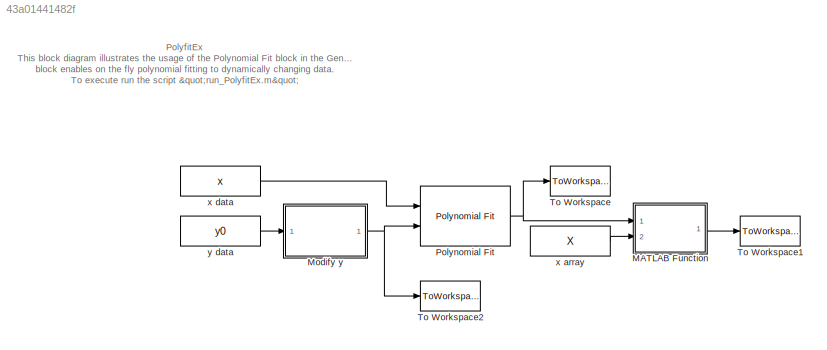
MODEL slx_43a01441482f
KIND model
CONFIG AbsTol = auto
CONFIG FixedStep = 0.2
CONFIG MaxStep = auto
CONFIG MinStep = auto
CONFIG RelTol = 1e-3
CONFIG SampleTimeConstraint = Unconstrained
CONFIG Solver = FixedStepDiscrete
CONFIG SolverMode = Auto
CONFIG SolverName = FixedStepDiscrete
CONFIG StartTime = 0.0
CONFIG StopTime = 50
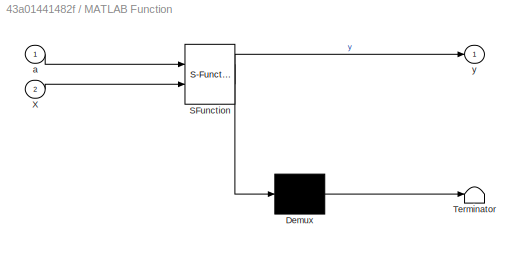
BLOCK [SubSystem] MATLAB Function
  ErrorFcn = Stateflow.Translate.translate
  PermitHierarchicalResolution = ExplicitOnly
  Ports = [2, 1]
  RequestExecContextInheritance = off
  SFBlockType = MATLAB Function
  TreatAsAtomicUnit = on
BLOCK [Demux] MATLAB Function/ Demux 
  Outputs = 1
  Ports = [1, 1]
BLOCK [S-Function] MATLAB Function/ SFunction 
  EnableBusSupport = on
  FunctionName = sf_sfun
  PortCounts = [2 2]
  Ports = [2, 2]
  Tag = Stateflow S-Function PolyfitEx 2
BLOCK [Terminator] MATLAB Function/ Terminator 
BLOCK [Inport] MATLAB Function/X
  IconDisplay = Port number
  Port = 2
BLOCK [Inport] MATLAB Function/a
  IconDisplay = Port number
BLOCK [Outport] MATLAB Function/y
  IconDisplay = Port number
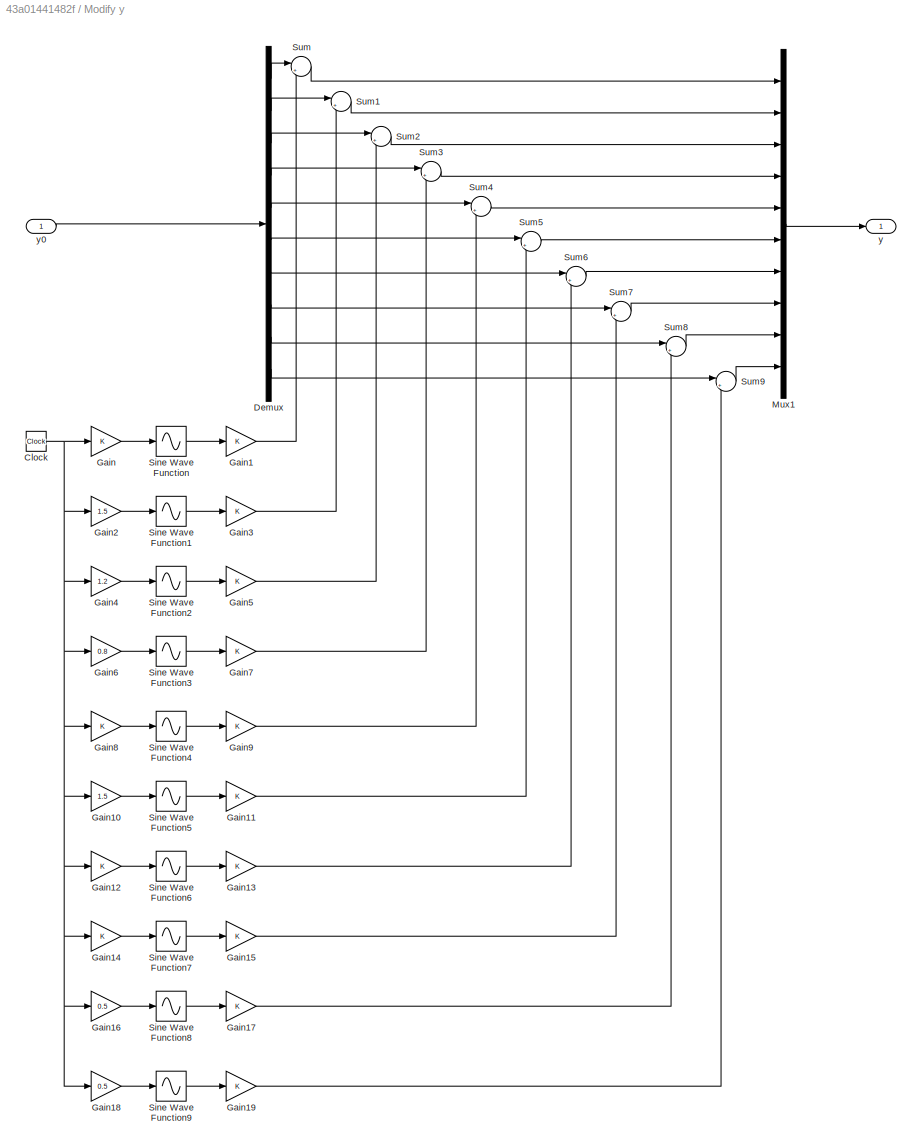
BLOCK [SubSystem] Modify y
  Ports = [1, 1]
  RequestExecContextInheritance = off
BLOCK [Clock] Modify y/Clock
BLOCK [Demux] Modify y/Demux
  DisplayOption = bar
  Outputs = 10
  Ports = [1, 10]
BLOCK [Gain] Modify y/Gain
  OutDataTypeStr = Inherit: Inherit via internal rule
  ParamDataTypeStr = Inherit: Inherit via internal rule
  SaturateOnIntegerOverflow = off
BLOCK [Gain] Modify y/Gain1
  OutDataTypeStr = Inherit: Inherit via internal rule
  ParamDataTypeStr = Inherit: Inherit via internal rule
  SaturateOnIntegerOverflow = off
BLOCK [Gain] Modify y/Gain10
  Gain = 1.5
  OutDataTypeStr = Inherit: Inherit via internal rule
  ParamDataTypeStr = Inherit: Inherit via internal rule
  SaturateOnIntegerOverflow = off
BLOCK [Gain] Modify y/Gain11
  OutDataTypeStr = Inherit: Inherit via internal rule
  ParamDataTypeStr = Inherit: Inherit via internal rule
  SaturateOnIntegerOverflow = off
BLOCK [Gain] Modify y/Gain12
  OutDataTypeStr = Inherit: Inherit via internal rule
  ParamDataTypeStr = Inherit: Inherit via internal rule
  SaturateOnIntegerOverflow = off
BLOCK [Gain] Modify y/Gain13
  OutDataTypeStr = Inherit: Inherit via internal rule
  ParamDataTypeStr = Inherit: Inherit via internal rule
  SaturateOnIntegerOverflow = off
BLOCK [Gain] Modify y/Gain14
  OutDataTypeStr = Inherit: Inherit via internal rule
  ParamDataTypeStr = Inherit: Inherit via internal rule
  SaturateOnIntegerOverflow = off
BLOCK [Gain] Modify y/Gain15
  OutDataTypeStr = Inherit: Inherit via internal rule
  ParamDataTypeStr = Inherit: Inherit via internal rule
  SaturateOnIntegerOverflow = off
BLOCK [Gain] Modify y/Gain16
  Gain = 0.5
  OutDataTypeStr = Inherit: Inherit via internal rule
  ParamDataTypeStr = Inherit: Inherit via internal rule
  SaturateOnIntegerOverflow = off
BLOCK [Gain] Modify y/Gain17
  OutDataTypeStr = Inherit: Inherit via internal rule
  ParamDataTypeStr = Inherit: Inherit via internal rule
  SaturateOnIntegerOverflow = off
BLOCK [Gain] Modify y/Gain18
  Gain = 0.5
  OutDataTypeStr = Inherit: Inherit via internal rule
  ParamDataTypeStr = Inherit: Inherit via internal rule
  SaturateOnIntegerOverflow = off
BLOCK [Gain] Modify y/Gain19
  OutDataTypeStr = Inherit: Inherit via internal rule
  ParamDataTypeStr = Inherit: Inherit via internal rule
  SaturateOnIntegerOverflow = off
BLOCK [Gain] Modify y/Gain2
  Gain = 1.5
  OutDataTypeStr = Inherit: Inherit via internal rule
  ParamDataTypeStr = Inherit: Inherit via internal rule
  SaturateOnIntegerOverflow = off
BLOCK [Gain] Modify y/Gain3
  OutDataTypeStr = Inherit: Inherit via internal rule
  ParamDataTypeStr = Inherit: Inherit via internal rule
  SaturateOnIntegerOverflow = off
BLOCK [Gain] Modify y/Gain4
  Gain = 1.2
  OutDataTypeStr = Inherit: Inherit via internal rule
  ParamDataTypeStr = Inherit: Inherit via internal rule
  SaturateOnIntegerOverflow = off
BLOCK [Gain] Modify y/Gain5
  OutDataTypeStr = Inherit: Inherit via internal rule
  ParamDataTypeStr = Inherit: Inherit via internal rule
  SaturateOnIntegerOverflow = off
BLOCK [Gain] Modify y/Gain6
  Gain = 0.8
  OutDataTypeStr = Inherit: Inherit via internal rule
  ParamDataTypeStr = Inherit: Inherit via internal rule
  SaturateOnIntegerOverflow = off
BLOCK [Gain] Modify y/Gain7
  OutDataTypeStr = Inherit: Inherit via internal rule
  ParamDataTypeStr = Inherit: Inherit via internal rule
  SaturateOnIntegerOverflow = off
BLOCK [Gain] Modify y/Gain8
  OutDataTypeStr = Inherit: Inherit via internal rule
  ParamDataTypeStr = Inherit: Inherit via internal rule
  SaturateOnIntegerOverflow = off
BLOCK [Gain] Modify y/Gain9
  OutDataTypeStr = Inherit: Inherit via internal rule
  ParamDataTypeStr = Inherit: Inherit via internal rule
  SaturateOnIntegerOverflow = off
BLOCK [Mux] Modify y/Mux1
  DisplayOption = bar
  Inputs = 10
  Ports = [10, 1]
BLOCK [Sin] Modify y/Sine Wave Function
  Ports = [1, 1]
  SampleTime = 0
  TimeSource = Use external signal
BLOCK [Sin] Modify y/Sine Wave Function1
  Ports = [1, 1]
  SampleTime = 0
  TimeSource = Use external signal
BLOCK [Sin] Modify y/Sine Wave Function2
  Ports = [1, 1]
  SampleTime = 0
  TimeSource = Use external signal
BLOCK [Sin] Modify y/Sine Wave Function3
  Ports = [1, 1]
  SampleTime = 0
  TimeSource = Use external signal
BLOCK [Sin] Modify y/Sine Wave Function4
  Ports = [1, 1]
  SampleTime = 0
  TimeSource = Use external signal
BLOCK [Sin] Modify y/Sine Wave Function5
  Ports = [1, 1]
  SampleTime = 0
  TimeSource = Use external signal
BLOCK [Sin] Modify y/Sine Wave Function6
  Ports = [1, 1]
  SampleTime = 0
  TimeSource = Use external signal
BLOCK [Sin] Modify y/Sine Wave Function7
  Ports = [1, 1]
  SampleTime = 0
  TimeSource = Use external signal
BLOCK [Sin] Modify y/Sine Wave Function8
  Ports = [1, 1]
  SampleTime = 0
  TimeSource = Use external signal
BLOCK [Sin] Modify y/Sine Wave Function9
  Ports = [1, 1]
  SampleTime = 0
  TimeSource = Use external signal
BLOCK [Sum] Modify y/Sum
  IconShape = round
  InputSameDT = off
  Inputs = |++
  OutDataTypeStr = Inherit: Inherit via internal rule
  Ports = [2, 1]
  SaturateOnIntegerOverflow = off
BLOCK [Sum] Modify y/Sum1
  IconShape = round
  InputSameDT = off
  Inputs = |++
  OutDataTypeStr = Inherit: Inherit via internal rule
  Ports = [2, 1]
  SaturateOnIntegerOverflow = off
BLOCK [Sum] Modify y/Sum2
  IconShape = round
  InputSameDT = off
  Inputs = |++
  OutDataTypeStr = Inherit: Inherit via internal rule
  Ports = [2, 1]
  SaturateOnIntegerOverflow = off
BLOCK [Sum] Modify y/Sum3
  IconShape = round
  InputSameDT = off
  Inputs = |++
  OutDataTypeStr = Inherit: Inherit via internal rule
  Ports = [2, 1]
  SaturateOnIntegerOverflow = off
BLOCK [Sum] Modify y/Sum4
  IconShape = round
  InputSameDT = off
  Inputs = |++
  OutDataTypeStr = Inherit: Inherit via internal rule
  Ports = [2, 1]
  SaturateOnIntegerOverflow = off
BLOCK [Sum] Modify y/Sum5
  IconShape = round
  InputSameDT = off
  Inputs = |++
  OutDataTypeStr = Inherit: Inherit via internal rule
  Ports = [2, 1]
  SaturateOnIntegerOverflow = off
BLOCK [Sum] Modify y/Sum6
  IconShape = round
  InputSameDT = off
  Inputs = |++
  OutDataTypeStr = Inherit: Inherit via internal rule
  Ports = [2, 1]
  SaturateOnIntegerOverflow = off
BLOCK [Sum] Modify y/Sum7
  IconShape = round
  InputSameDT = off
  Inputs = |++
  OutDataTypeStr = Inherit: Inherit via internal rule
  Ports = [2, 1]
  SaturateOnIntegerOverflow = off
BLOCK [Sum] Modify y/Sum8
  IconShape = round
  InputSameDT = off
  Inputs = |++
  OutDataTypeStr = Inherit: Inherit via internal rule
  Ports = [2, 1]
  SaturateOnIntegerOverflow = off
BLOCK [Sum] Modify y/Sum9
  IconShape = round
  InputSameDT = off
  Inputs = |++
  OutDataTypeStr = Inherit: Inherit via internal rule
  Ports = [2, 1]
  SaturateOnIntegerOverflow = off
BLOCK [Outport] Modify y/y
  IconDisplay = Port number
BLOCK [Inport] Modify y/y0
  IconDisplay = Port number
BLOCK [Reference] Polynomial Fit  REF=lib_GenTools_PolynomialFit/Polynomial Fit
  BN_M = double(gcb)
  N_M = 6
  Ports = [2, 1]
  SourceBlock = lib_GenTools_PolynomialFit/Polynomial Fit
  SourceType = TSAT: Polynomial Fit
BLOCK [ToWorkspace] To Workspace
  FixptAsFi = on
  MaxDataPoints = inf
  Ports = [1]
  SampleTime = -1
  Save2DSignal = 3-D array (concatenate along third dimension)
  SaveFormat = Timeseries
  VariableName = a
BLOCK [ToWorkspace] To Workspace1
  FixptAsFi = on
  MaxDataPoints = inf
  Ports = [1]
  SampleTime = -1
  Save2DSignal = 3-D array (concatenate along third dimension)
  SaveFormat = Timeseries
  VariableName = y
BLOCK [ToWorkspace] To Workspace2
  FixptAsFi = on
  MaxDataPoints = inf
  Ports = [1]
  SampleTime = -1
  Save2DSignal = 3-D array (concatenate along third dimension)
  SaveFormat = Timeseries
  VariableName = ydata
BLOCK [Constant] x array
  Value = X
BLOCK [Constant] x data
  Value = x
BLOCK [Constant] y data
  Value = y0
ANNOTATION (root): PolyfitEx This block diagram illustrates the usage of the Polynomial Fit block in the GenTool library of TSAT. This block enables on the fly polynomial fitting to dynamically changing data. To execute run the script "run_PolyfitEx.m"
LINE MATLAB Function:1 -> To Workspace1:1
NET Modify y/Clock:1 -> Modify y/Gain10:1, Modify y/Gain12:1, Modify y/Gain14:1, Modify y/Gain16:1, Modify y/Gain18:1, Modify y/Gain2:1, Modify y/Gain4:1, Modify y/Gain6:1, Modify y/Gain8:1, Modify y/Gain:1
LINE Modify y/Demux:1 -> Modify y/Sum:1
LINE Modify y/Demux:10 -> Modify y/Sum9:1
LINE Modify y/Demux:2 -> Modify y/Sum1:1
LINE Modify y/Demux:3 -> Modify y/Sum2:1
LINE Modify y/Demux:4 -> Modify y/Sum3:1
LINE Modify y/Demux:5 -> Modify y/Sum4:1
LINE Modify y/Demux:6 -> Modify y/Sum5:1
LINE Modify y/Demux:7 -> Modify y/Sum6:1
LINE Modify y/Demux:8 -> Modify y/Sum7:1
LINE Modify y/Demux:9 -> Modify y/Sum8:1
LINE Modify y/Gain10:1 -> Modify y/Sine Wave Function5:1
LINE Modify y/Gain11:1 -> Modify y/Sum5:2
LINE Modify y/Gain12:1 -> Modify y/Sine Wave Function6:1
LINE Modify y/Gain13:1 -> Modify y/Sum6:2
LINE Modify y/Gain14:1 -> Modify y/Sine Wave Function7:1
LINE Modify y/Gain15:1 -> Modify y/Sum7:2
LINE Modify y/Gain16:1 -> Modify y/Sine Wave Function8:1
LINE Modify y/Gain17:1 -> Modify y/Sum8:2
LINE Modify y/Gain18:1 -> Modify y/Sine Wave Function9:1
LINE Modify y/Gain19:1 -> Modify y/Sum9:2
LINE Modify y/Gain1:1 -> Modify y/Sum:2
LINE Modify y/Gain2:1 -> Modify y/Sine Wave Function1:1
LINE Modify y/Gain3:1 -> Modify y/Sum1:2
LINE Modify y/Gain4:1 -> Modify y/Sine Wave Function2:1
LINE Modify y/Gain5:1 -> Modify y/Sum2:2
LINE Modify y/Gain6:1 -> Modify y/Sine Wave Function3:1
LINE Modify y/Gain7:1 -> Modify y/Sum3:2
LINE Modify y/Gain8:1 -> Modify y/Sine Wave Function4:1
LINE Modify y/Gain9:1 -> Modify y/Sum4:2
LINE Modify y/Gain:1 -> Modify y/Sine Wave Function:1
LINE Modify y/Mux1:1 -> Modify y/y:1
LINE Modify y/Sine Wave Function1:1 -> Modify y/Gain3:1
LINE Modify y/Sine Wave Function2:1 -> Modify y/Gain5:1
LINE Modify y/Sine Wave Function3:1 -> Modify y/Gain7:1
LINE Modify y/Sine Wave Function4:1 -> Modify y/Gain9:1
LINE Modify y/Sine Wave Function5:1 -> Modify y/Gain11:1
LINE Modify y/Sine Wave Function6:1 -> Modify y/Gain13:1
LINE Modify y/Sine Wave Function7:1 -> Modify y/Gain15:1
LINE Modify y/Sine Wave Function8:1 -> Modify y/Gain17:1
LINE Modify y/Sine Wave Function9:1 -> Modify y/Gain19:1
LINE Modify y/Sine Wave Function:1 -> Modify y/Gain1:1
LINE Modify y/Sum1:1 -> Modify y/Mux1:2
LINE Modify y/Sum2:1 -> Modify y/Mux1:3
LINE Modify y/Sum3:1 -> Modify y/Mux1:4
LINE Modify y/Sum4:1 -> Modify y/Mux1:5
LINE Modify y/Sum5:1 -> Modify y/Mux1:6
LINE Modify y/Sum6:1 -> Modify y/Mux1:7
LINE Modify y/Sum7:1 -> Modify y/Mux1:8
LINE Modify y/Sum8:1 -> Modify y/Mux1:9
LINE Modify y/Sum9:1 -> Modify y/Mux1:10
LINE Modify y/Sum:1 -> Modify y/Mux1:1
LINE Modify y/y0:1 -> Modify y/Demux:1
NET Modify y:1 -> Polynomial Fit:2, To Workspace2:1
NET Polynomial Fit:1 -> MATLAB Function:1, To Workspace:1
LINE x array:1 -> MATLAB Function:2
LINE x data:1 -> Polynomial Fit:1
LINE y data:1 -> Modify y:1
note: NET lines group one-source signal fan-out (src -> all destinations, sorted); 1:1 wires keep LINE
CHART MATLAB Function states=1 transitions=1
  STATE_LABEL 'eML_blk_kernel()'
  STATE_LABEL 'SCRIPT:\nfunction y = fcn(a,X)\n%#codegen\n\ny = a(1) + a(2)*X + a(3)*X.^2 + a(4)*X.^3 + a(5)*X.^4 ...\n    + a(6)*X.^5 + a(7)*X.^6;'
